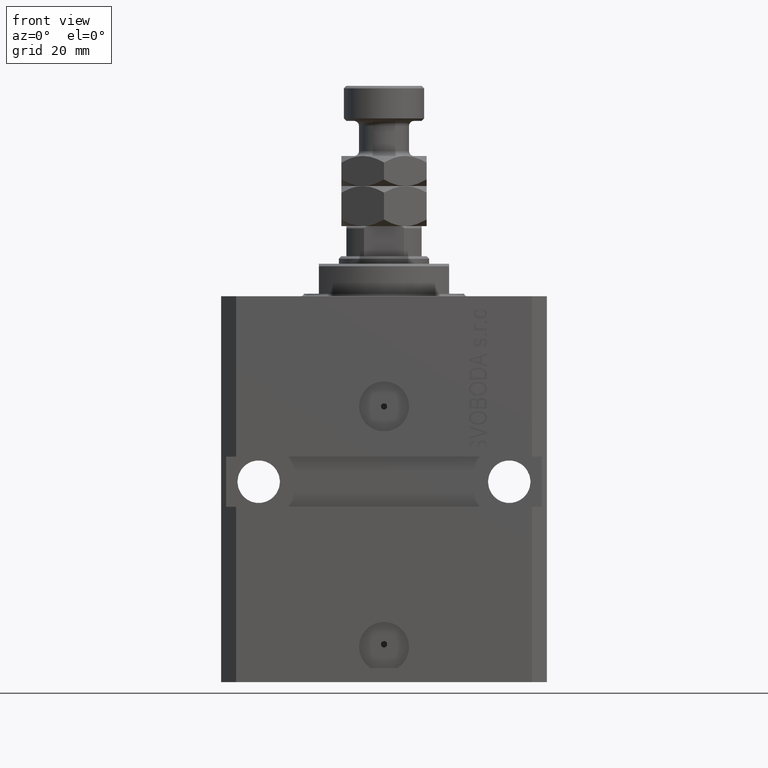
[diagram: clean part render]
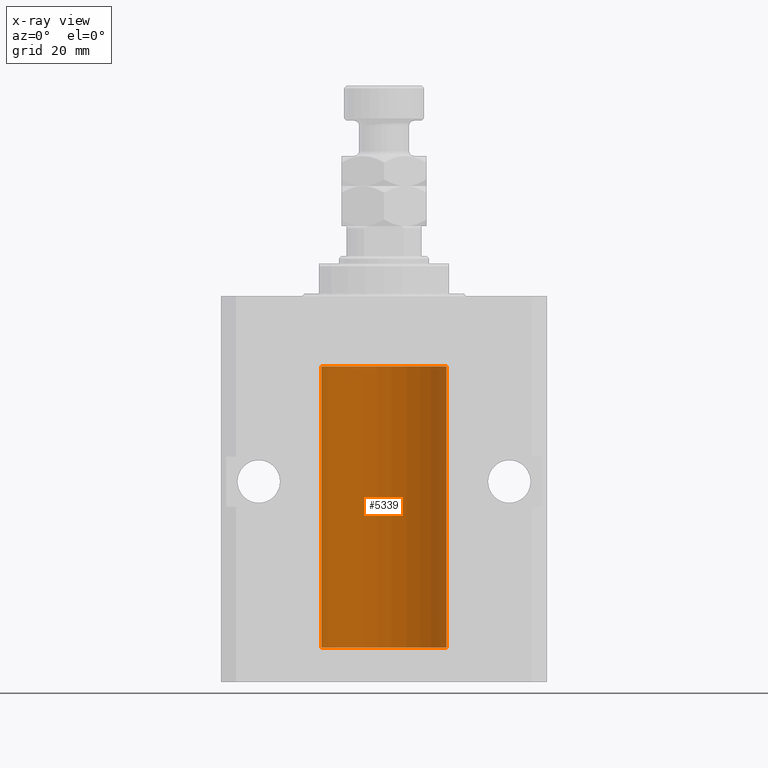
[diagram: x-ray — body ghosted, one internal face saturated and labeled with its STEP entity id]
A machine part, front view, then the same camera in x-ray: the body is ghosted and one INTERNAL B-rep face — a face not visible from any outside direction — is saturated and labeled: STEP entity #5339.
In plain terms, the highlighted cylindrical surface (partial cylindrical patch) has radius 12.5 mm, axis along (0, 0, 1).
Its self-contained STEP definition (entity closure, byte-faithful):
#279 = EDGE_CURVE ( 'NONE', #38093, #28241, #27802, .T. ) ;
#540 = CARTESIAN_POINT ( 'NONE',  ( -12.50000000000000000, -2.089494013101375120E-17, -21.37499999999999645 ) ) ;
#1776 = AXIS2_PLACEMENT_3D ( 'NONE', #39469, #5770, #5270 ) ;
#2064 = CARTESIAN_POINT ( 'NONE',  ( -12.48520330846398174, 0.6088355886774118320, -65.16325431852561678 ) ) ;
#2460 = ORIENTED_EDGE ( 'NONE', *, *, #24446, .T. ) ;
#2462 = ORIENTED_EDGE ( 'NONE', *, *, #25475, .F. ) ;
#2559 = CARTESIAN_POINT ( 'NONE',  ( -12.49999999999999822, 0.1631761135151225950, -65.62499999999985789 ) ) ;
#2753 = VERTEX_POINT ( 'NONE', #42783 ) ;
#2778 = CARTESIAN_POINT ( 'NONE',  ( -12.49011732893843529, 0.5003763274120274218, -22.38348111289287701 ) ) ;
#3172 = DIRECTION ( 'NONE',  ( -0.000000000000000000, -0.000000000000000000, 1.000000000000000000 ) ) ;
#3392 = CARTESIAN_POINT ( 'NONE',  ( 12.49012055744648997, 0.5002956126656082914, -64.61641710202404454 ) ) ;
#3504 = DIRECTION ( 'NONE',  ( 1.000000000000000000, 0.000000000000000000, 0.000000000000000000 ) ) ;
#3506 = CARTESIAN_POINT ( 'NONE',  ( -12.49422197749724006, 0.3843754434364375916, -21.50047099568095277 ) ) ;
#3652 = CARTESIAN_POINT ( 'NONE',  ( -12.50000000000000000, 1.530808498934191521E-15, -70.09999999999999432 ) ) ;
#4058 = LINE ( 'NONE', #23280, #46699 ) ;
#4088 = VERTEX_POINT ( 'NONE', #21246 ) ;
#4165 = CIRCLE ( 'NONE', #1776, 12.50000000000000000 ) ;
#4182 = VERTEX_POINT ( 'NONE', #4238 ) ;
#4238 = CARTESIAN_POINT ( 'NONE',  ( 12.50000000000000000, -1.836039810331332019E-15, -65.62500000000000000 ) ) ;
#4476 = CARTESIAN_POINT ( 'NONE',  ( 12.50000000000017941, 3.868073689162038701E-13, -64.37499999999640465 ) ) ;
#4850 = EDGE_CURVE ( 'NONE', #2753, #30346, #4058, .T. ) ;
#4971 = B_SPLINE_CURVE_WITH_KNOTS ( 'NONE', 3,
 ( #25974, #10522, #6521, #25739, #18719, #7496, #37453, #48450 ),
 .UNSPECIFIED., .F., .F.,
 ( 4, 2, 2, 4 ),
 ( 1.784246692340212412E-18, 0.0002443481056285665750, 0.0004886962112571313068, 0.0009773924225142606621 ),
 .UNSPECIFIED. ) ;
#5270 = DIRECTION ( 'NONE',  ( 1.000000000000000000, 0.000000000000000000, 0.000000000000000000 ) ) ;
#5339 = ADVANCED_FACE ( 'NONE', ( #34453 ), #37952, .F. ) ;
#5770 = DIRECTION ( 'NONE',  ( 0.000000000000000000, 0.000000000000000000, 1.000000000000000000 ) ) ;
#5816 = CARTESIAN_POINT ( 'NONE',  ( -12.49422197749724361, 0.3843754434364307082, -64.50047099568097053 ) ) ;
#6521 = CARTESIAN_POINT ( 'NONE',  ( 12.49915742890631876, 0.1636982395582385896, -65.60872397847025184 ) ) ;
#7147 = CARTESIAN_POINT ( 'NONE',  ( 12.50000000000017941, 3.868073689162038701E-13, -64.37499999999640465 ) ) ;
#7496 = CARTESIAN_POINT ( 'NONE',  ( 12.48809900631782099, 0.5573988467445673001, -65.32640147935475738 ) ) ;
#7774 = CARTESIAN_POINT ( 'NONE',  ( 12.50000000000000178, 0.08262306818362646910, -22.62499999999997158 ) ) ;
#8564 = ORIENTED_EDGE ( 'NONE', *, *, #40527, .T. ) ;
#8664 = VECTOR ( 'NONE', #25562, 1000.000000000000000 ) ;
#8772 = CARTESIAN_POINT ( 'NONE',  ( 0.000000000000000000, 0.000000000000000000, -70.09999999999999432 ) ) ;
#9133 = ORIENTED_EDGE ( 'NONE', *, *, #27264, .T. ) ;
#9233 = ORIENTED_EDGE ( 'NONE', *, *, #36923, .T. ) ;
#9812 = CARTESIAN_POINT ( 'NONE',  ( -12.50000000000017941, 3.883381774819353300E-13, -65.62500000000359535 ) ) ;
#10057 = CARTESIAN_POINT ( 'NONE',  ( -12.49915784441386890, 0.1636601911727943726, -64.39126818989430490 ) ) ;
#10397 = CARTESIAN_POINT ( 'NONE',  ( 12.48436522214846889, 0.6250000000078781426, -21.99999999999923261 ) ) ;
#10522 = CARTESIAN_POINT ( 'NONE',  ( 12.49999999999999822, 0.08262306818362624705, -65.62500000000000000 ) ) ;
#10764 = CARTESIAN_POINT ( 'NONE',  ( -12.49625855304193678, 0.3150454781038042329, -21.45402800297484802 ) ) ;
#10788 = CARTESIAN_POINT ( 'NONE',  ( 12.49915742890631876, 0.1636982395582408101, -22.60872397847025894 ) ) ;
#12356 = B_SPLINE_CURVE_WITH_KNOTS ( 'NONE', 3,
 ( #21753, #41212, #48705, #10764, #3506, #21998, #22487, #22244, #48945, #14741, #2778, #29977, #45204, #36981 ),
 .UNSPECIFIED., .F., .F.,
 ( 4, 2, 2, 2, 2, 2, 4 ),
 ( 2.030551168097110502E-20, 0.0002442924852390969078, 0.0004885849704781938157, 0.0009771699409563880650, 0.001221462426195485135, 0.001465754911434582423, 0.001954339881912776130 ),
 .UNSPECIFIED. ) ;
#12487 = B_SPLINE_CURVE_WITH_KNOTS ( 'NONE', 3,
 ( #24787, #43998, #10057, #40014, #5816, #21044, #21536, #36762, #2064, #36515, #32517, #28774, #2559, #9812 ),
 .UNSPECIFIED., .F., .F.,
 ( 4, 2, 2, 2, 2, 2, 4 ),
 ( 3.492495172846855184E-18, 0.0002442924852390798859, 0.0004885849704781563023, 0.0009771699409563386254, 0.001221462426195450658, 0.001465754911434562473, 0.001954339881912786538 ),
 .UNSPECIFIED. ) ;
#12879 = CARTESIAN_POINT ( 'NONE',  ( 12.49012055744648997, 0.5002956126655978553, -21.61641710202404454 ) ) ;
#14626 = CARTESIAN_POINT ( 'NONE',  ( 12.48520578595314845, 0.6087855079133740466, -64.83656717509344958 ) ) ;
#14741 = CARTESIAN_POINT ( 'NONE',  ( -12.48809959379011403, 0.5462151254764975317, -22.31461370481611795 ) ) ;
#15232 = CARTESIAN_POINT ( 'NONE',  ( 0.000000000000000000, 0.000000000000000000, -70.09999999999999432 ) ) ;
#15264 = ORIENTED_EDGE ( 'NONE', *, *, #40052, .T. ) ;
#15507 = CARTESIAN_POINT ( 'NONE',  ( 12.49625698805481200, 0.3151108292486943241, -22.54593695688172161 ) ) ;
#16365 = CARTESIAN_POINT ( 'NONE',  ( 12.48436522214846889, 0.6250000000078781426, -21.99999999999923261 ) ) ;
#17082 = CARTESIAN_POINT ( 'NONE',  ( -12.50000000000000000, 1.530808498934191521E-15, -70.09999999999999432 ) ) ;
#18110 = AXIS2_PLACEMENT_3D ( 'NONE', #8772, #20252, #35469 ) ;
#18719 = CARTESIAN_POINT ( 'NONE',  ( 12.49421963472024721, 0.3844519291903572555, -65.49947303647046226 ) ) ;
#19035 = CARTESIAN_POINT ( 'NONE',  ( 12.50000000000017941, 3.868073565084946818E-13, -21.37499999999641176 ) ) ;
#19180 = EDGE_CURVE ( 'NONE', #28241, #42351, #42917, .T. ) ;
#19631 = ORIENTED_EDGE ( 'NONE', *, *, #19180, .T. ) ;
#19839 = VERTEX_POINT ( 'NONE', #27299 ) ;
#20252 = DIRECTION ( 'NONE',  ( 0.000000000000000000, 0.000000000000000000, 1.000000000000000000 ) ) ;
#20909 = EDGE_CURVE ( 'NONE', #19839, #30346, #12487, .T. ) ;
#21044 = CARTESIAN_POINT ( 'NONE',  ( -12.48810268015257741, 0.5573155909661293705, -64.67347410093867666 ) ) ;
#21230 = AXIS2_PLACEMENT_3D ( 'NONE', #15232, #37709, #3504 ) ;
#21246 = CARTESIAN_POINT ( 'NONE',  ( 12.50000000000000000, 0.000000000000000000, -70.09999999999999432 ) ) ;
#21536 = CARTESIAN_POINT ( 'NONE',  ( -12.48436813453758809, 0.6249418250771181516, -64.83668996798922990 ) ) ;
#21753 = CARTESIAN_POINT ( 'NONE',  ( -12.50000000000000000, -2.089494013101375120E-17, -21.37499999999999645 ) ) ;
#21836 = VERTEX_POINT ( 'NONE', #540 ) ;
#21841 = VECTOR ( 'NONE', #3172, 1000.000000000000000 ) ;
#21998 = CARTESIAN_POINT ( 'NONE',  ( -12.48810268015257563, 0.5573155909661349217, -21.67347410093867666 ) ) ;
#22020 = CARTESIAN_POINT ( 'NONE',  ( 12.48436522214846889, 0.6250000000078781426, -21.99999999999923261 ) ) ;
#22106 = CIRCLE ( 'NONE', #18110, 12.50000000000000000 ) ;
#22123 = CARTESIAN_POINT ( 'NONE',  ( 12.48436522214846711, 0.6250000000078848039, -64.99999999999923261 ) ) ;
#22244 = CARTESIAN_POINT ( 'NONE',  ( -12.48436376893640443, 0.6250290278979917513, -22.08132082824473486 ) ) ;
#22487 = CARTESIAN_POINT ( 'NONE',  ( -12.48436813453758454, 0.6249418250771192618, -21.83668996798922635 ) ) ;
#22615 = CARTESIAN_POINT ( 'NONE',  ( 12.49999999999999822, 0.1631389616600901760, -64.37500000000022737 ) ) ;
#23280 = CARTESIAN_POINT ( 'NONE',  ( -12.50000000000000000, 1.530808498934191521E-15, -70.09999999999999432 ) ) ;
#24056 = DIRECTION ( 'NONE',  ( -0.000000000000000000, -0.000000000000000000, 1.000000000000000000 ) ) ;
#24114 = CARTESIAN_POINT ( 'NONE',  ( 12.48436522214888100, 0.6249999999996767031, -21.91847339462351130 ) ) ;
#24363 = CARTESIAN_POINT ( 'NONE',  ( -12.50000000000017941, 3.883381646606358354E-13, -22.62500000000358824 ) ) ;
#24446 = EDGE_CURVE ( 'NONE', #4088, #4182, #44630, .T. ) ;
#24615 = CARTESIAN_POINT ( 'NONE',  ( 12.49631206032075958, 0.3252904079142805438, -21.44139700214925526 ) ) ;
#24787 = CARTESIAN_POINT ( 'NONE',  ( -12.50000000000000000, -1.053276923642966949E-14, -64.37500000000000000 ) ) ;
#25386 = B_SPLINE_CURVE_WITH_KNOTS ( 'NONE', 3,
 ( #22123, #48833, #14626, #41342, #3392, #49314, #22615, #7147 ),
 .UNSPECIFIED., .F., .F.,
 ( 4, 2, 2, 4 ),
 ( 0.0009773924225142606621, 0.001221629287363811033, 0.001465866152213361404, 0.001954339881912461711 ),
 .UNSPECIFIED. ) ;
#25475 = EDGE_CURVE ( 'NONE', #4088, #2753, #22106, .T. ) ;
#25562 = DIRECTION ( 'NONE',  ( -0.000000000000000000, -0.000000000000000000, 1.000000000000000000 ) ) ;
#25739 = CARTESIAN_POINT ( 'NONE',  ( 12.49625698805481022, 0.3151108292486944906, -65.54593695688173227 ) ) ;
#25791 = VERTEX_POINT ( 'NONE', #34314 ) ;
#25896 = LINE ( 'NONE', #3652, #21841 ) ;
#25920 = ORIENTED_EDGE ( 'NONE', *, *, #4850, .F. ) ;
#25974 = CARTESIAN_POINT ( 'NONE',  ( 12.50000000000000000, -1.836039810331332019E-15, -65.62500000000000000 ) ) ;
#26298 = DIRECTION ( 'NONE',  ( -0.000000000000000000, -0.000000000000000000, 1.000000000000000000 ) ) ;
#26566 = VERTEX_POINT ( 'NONE', #32182 ) ;
#26612 = VECTOR ( 'NONE', #24056, 1000.000000000000000 ) ;
#26733 = CARTESIAN_POINT ( 'NONE',  ( 12.50000000000000000, -6.043189914290669986E-17, -22.62500000000000000 ) ) ;
#26983 = CARTESIAN_POINT ( 'NONE',  ( 12.48809900631782099, 0.5573988467445616379, -22.32640147935473962 ) ) ;
#27264 = EDGE_CURVE ( 'NONE', #39044, #26566, #49250, .T. ) ;
#27299 = CARTESIAN_POINT ( 'NONE',  ( -12.50000000000000000, -1.053276923642966949E-14, -64.37500000000000000 ) ) ;
#27802 = LINE ( 'NONE', #43033, #26612 ) ;
#27941 = ORIENTED_EDGE ( 'NONE', *, *, #33057, .F. ) ;
#28241 = VERTEX_POINT ( 'NONE', #29572 ) ;
#28604 = CARTESIAN_POINT ( 'NONE',  ( 12.48520578595314845, 0.6087855079133686065, -21.83656717509346024 ) ) ;
#28774 = CARTESIAN_POINT ( 'NONE',  ( -12.49631005746706514, 0.3253680783018499389, -65.55856740465391397 ) ) ;
#29572 = CARTESIAN_POINT ( 'NONE',  ( 12.50000000000000000, -6.043189914290669986E-17, -22.62500000000000000 ) ) ;
#29977 = CARTESIAN_POINT ( 'NONE',  ( -12.49631005746706336, 0.3253680783018528255, -22.55856740465392463 ) ) ;
#30160 = VECTOR ( 'NONE', #26298, 1000.000000000000000 ) ;
#30288 = CARTESIAN_POINT ( 'NONE',  ( 12.50000000000000000, 0.000000000000000000, -70.09999999999999432 ) ) ;
#30346 = VERTEX_POINT ( 'NONE', #48622 ) ;
#30522 = DIRECTION ( 'NONE',  ( -0.000000000000000000, -0.000000000000000000, 1.000000000000000000 ) ) ;
#32182 = CARTESIAN_POINT ( 'NONE',  ( 12.50000000000000000, 0.000000000000000000, -13.99999999999999822 ) ) ;
#32517 = CARTESIAN_POINT ( 'NONE',  ( -12.49011732893843885, 0.5003763274120245352, -65.38348111289289477 ) ) ;
#33057 = EDGE_CURVE ( 'NONE', #19839, #36883, #40292, .T. ) ;
#34052 = ORIENTED_EDGE ( 'NONE', *, *, #47285, .F. ) ;
#34314 = CARTESIAN_POINT ( 'NONE',  ( 12.48436522214846711, 0.6250000000078848039, -64.99999999999923261 ) ) ;
#34453 = FACE_OUTER_BOUND ( 'NONE', #36106, .T. ) ;
#35469 = DIRECTION ( 'NONE',  ( 1.000000000000000000, 0.000000000000000000, 0.000000000000000000 ) ) ;
#36093 = CARTESIAN_POINT ( 'NONE',  ( 12.50000000000017941, 3.868073565084946818E-13, -21.37499999999641176 ) ) ;
#36106 = EDGE_LOOP ( 'NONE', ( #25920, #2462, #2460, #41855, #39663, #36642, #19631, #9233, #9133, #8564, #34052, #15264, #27941, #38701 ) ) ;
#36402 = DIRECTION ( 'NONE',  ( -0.000000000000000000, -0.000000000000000000, 1.000000000000000000 ) ) ;
#36515 = CARTESIAN_POINT ( 'NONE',  ( -12.48809959379011580, 0.5462151254764966435, -65.31461370481613926 ) ) ;
#36642 = ORIENTED_EDGE ( 'NONE', *, *, #279, .T. ) ;
#36762 = CARTESIAN_POINT ( 'NONE',  ( -12.48436376893640265, 0.6250290278979918623, -65.08132082824472775 ) ) ;
#36883 = VERTEX_POINT ( 'NONE', #24363 ) ;
#36923 = EDGE_CURVE ( 'NONE', #42351, #39044, #37703, .T. ) ;
#36981 = CARTESIAN_POINT ( 'NONE',  ( -12.50000000000017941, 3.883381646606358354E-13, -22.62500000000358824 ) ) ;
#37453 = CARTESIAN_POINT ( 'NONE',  ( 12.48436522214885969, 0.6250000000001505462, -65.16312747540307271 ) ) ;
#37510 = CARTESIAN_POINT ( 'NONE',  ( -12.50000000000000000, 1.530808498934191521E-15, -13.99999999999999822 ) ) ;
#37703 = B_SPLINE_CURVE_WITH_KNOTS ( 'NONE', 3,
 ( #16365, #24114, #28604, #40085, #12879, #24615, #46824, #36093 ),
 .UNSPECIFIED., .F., .F.,
 ( 4, 2, 2, 4 ),
 ( 0.0009773924225142526390, 0.001221629287363798890, 0.001465866152213344924, 0.001954339881912444798 ),
 .UNSPECIFIED. ) ;
#37709 = DIRECTION ( 'NONE',  ( -0.000000000000000000, -0.000000000000000000, 1.000000000000000000 ) ) ;
#37952 = CYLINDRICAL_SURFACE ( 'NONE', #21230, 12.50000000000000000 ) ;
#38093 = VERTEX_POINT ( 'NONE', #4476 ) ;
#38701 = ORIENTED_EDGE ( 'NONE', *, *, #20909, .T. ) ;
#39044 = VERTEX_POINT ( 'NONE', #19035 ) ;
#39469 = CARTESIAN_POINT ( 'NONE',  ( 0.000000000000000000, 0.000000000000000000, -13.99999999999999822 ) ) ;
#39663 = ORIENTED_EDGE ( 'NONE', *, *, #49048, .T. ) ;
#40014 = CARTESIAN_POINT ( 'NONE',  ( -12.49625855304193500, 0.3150454781038046770, -64.45402800297485157 ) ) ;
#40052 = EDGE_CURVE ( 'NONE', #21836, #36883, #12356, .T. ) ;
#40085 = CARTESIAN_POINT ( 'NONE',  ( 12.48810305280568222, 0.5461368461738450586, -21.68525466142676805 ) ) ;
#40292 = LINE ( 'NONE', #17082, #8664 ) ;
#40527 = EDGE_CURVE ( 'NONE', #26566, #41321, #4165, .T. ) ;
#41212 = CARTESIAN_POINT ( 'NONE',  ( -12.50000000000000000, 0.08260426088729219685, -21.37500000000000000 ) ) ;
#41321 = VERTEX_POINT ( 'NONE', #37510 ) ;
#41342 = CARTESIAN_POINT ( 'NONE',  ( 12.48810305280568222, 0.5461368461738485003, -64.68525466142676805 ) ) ;
#41855 = ORIENTED_EDGE ( 'NONE', *, *, #43894, .T. ) ;
#42218 = CARTESIAN_POINT ( 'NONE',  ( 12.48436522214885080, 0.6250000000001435518, -22.16312747540306560 ) ) ;
#42351 = VERTEX_POINT ( 'NONE', #10397 ) ;
#42783 = CARTESIAN_POINT ( 'NONE',  ( -12.50000000000000000, 1.530808498934191521E-15, -70.09999999999999432 ) ) ;
#42917 = B_SPLINE_CURVE_WITH_KNOTS ( 'NONE', 3,
 ( #26733, #7774, #10788, #15507, #45952, #26983, #42218, #22020 ),
 .UNSPECIFIED., .F., .F.,
 ( 4, 2, 2, 4 ),
 ( 5.872716678082737689E-20, 0.0002443481056285632140, 0.0004886962112571263195, 0.0009773924225142526390 ),
 .UNSPECIFIED. ) ;
#43033 = CARTESIAN_POINT ( 'NONE',  ( 12.50000000000000000, 0.000000000000000000, -70.09999999999999432 ) ) ;
#43894 = EDGE_CURVE ( 'NONE', #4182, #25791, #4971, .T. ) ;
#43998 = CARTESIAN_POINT ( 'NONE',  ( -12.49999999999999645, 0.08260426088728485550, -64.37499999999998579 ) ) ;
#44630 = LINE ( 'NONE', #48129, #46747 ) ;
#45204 = CARTESIAN_POINT ( 'NONE',  ( -12.49999999999999289, 0.1631761135151241215, -22.62499999999984013 ) ) ;
#45952 = CARTESIAN_POINT ( 'NONE',  ( 12.49421963472024721, 0.3844519291903548686, -22.49947303647045871 ) ) ;
#46699 = VECTOR ( 'NONE', #30522, 1000.000000000000000 ) ;
#46747 = VECTOR ( 'NONE', #36402, 1000.000000000000000 ) ;
#46824 = CARTESIAN_POINT ( 'NONE',  ( 12.49999999999999112, 0.1631389616600886772, -21.37500000000019185 ) ) ;
#47285 = EDGE_CURVE ( 'NONE', #21836, #41321, #25896, .T. ) ;
#48129 = CARTESIAN_POINT ( 'NONE',  ( 12.50000000000000000, 0.000000000000000000, -70.09999999999999432 ) ) ;
#48450 = CARTESIAN_POINT ( 'NONE',  ( 12.48436522214846711, 0.6250000000078848039, -64.99999999999923261 ) ) ;
#48622 = CARTESIAN_POINT ( 'NONE',  ( -12.50000000000017941, 3.883381774819353300E-13, -65.62500000000359535 ) ) ;
#48705 = CARTESIAN_POINT ( 'NONE',  ( -12.49915784441386890, 0.1636601911727947889, -21.39126818989430490 ) ) ;
#48833 = CARTESIAN_POINT ( 'NONE',  ( 12.48436522214888100, 0.6249999999996834754, -64.91847339462351840 ) ) ;
#48945 = CARTESIAN_POINT ( 'NONE',  ( -12.48520330846397819, 0.6088355886774127201, -22.16325431852561323 ) ) ;
#49048 = EDGE_CURVE ( 'NONE', #25791, #38093, #25386, .T. ) ;
#49250 = LINE ( 'NONE', #30288, #30160 ) ;
#49314 = CARTESIAN_POINT ( 'NONE',  ( 12.49631206032076136, 0.3252904079142934779, -64.44139700214927302 ) ) ;